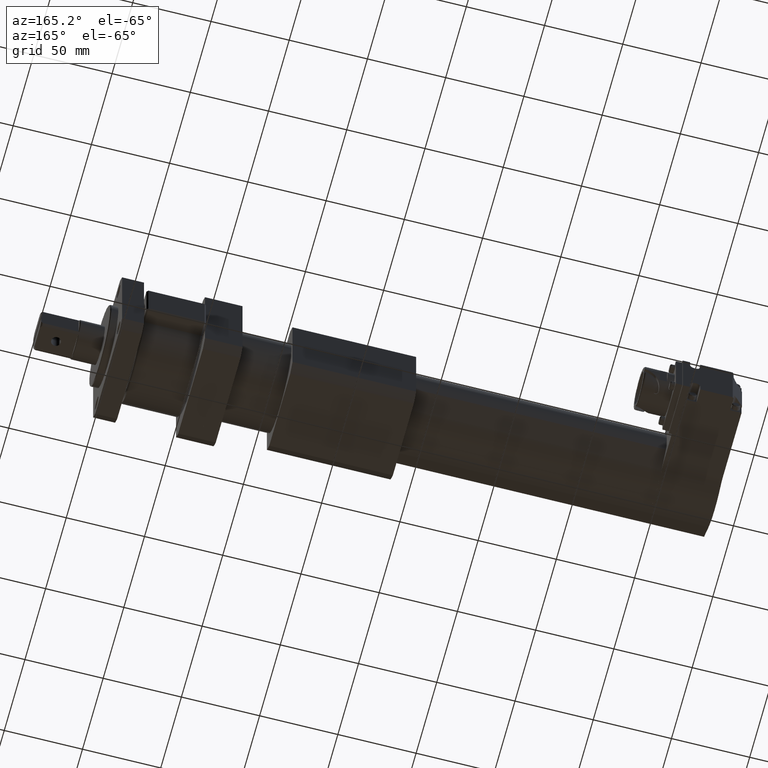
[diagram: clean part render]
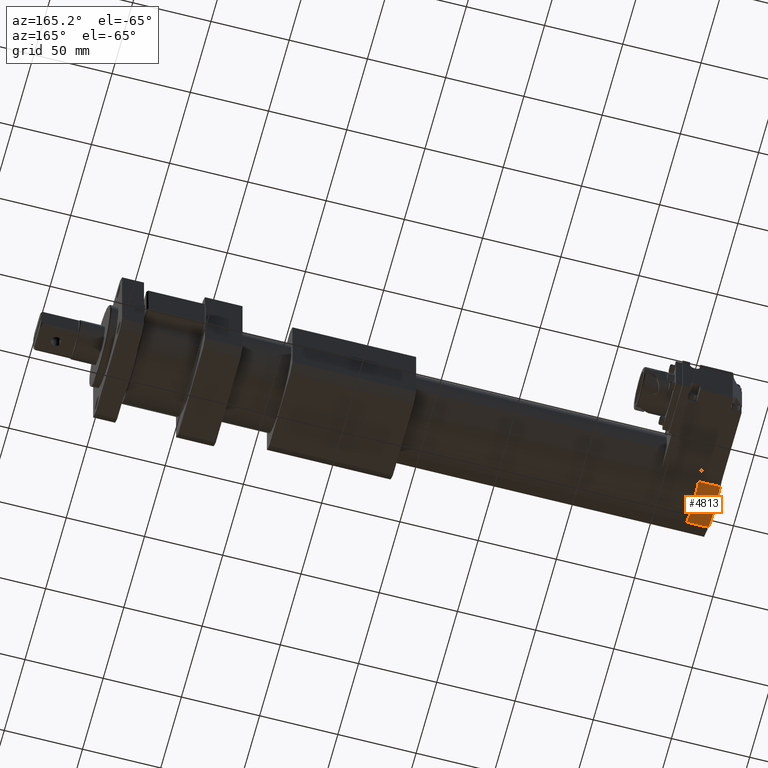
[diagram: same view with one face highlighted and labeled with its STEP entity id]
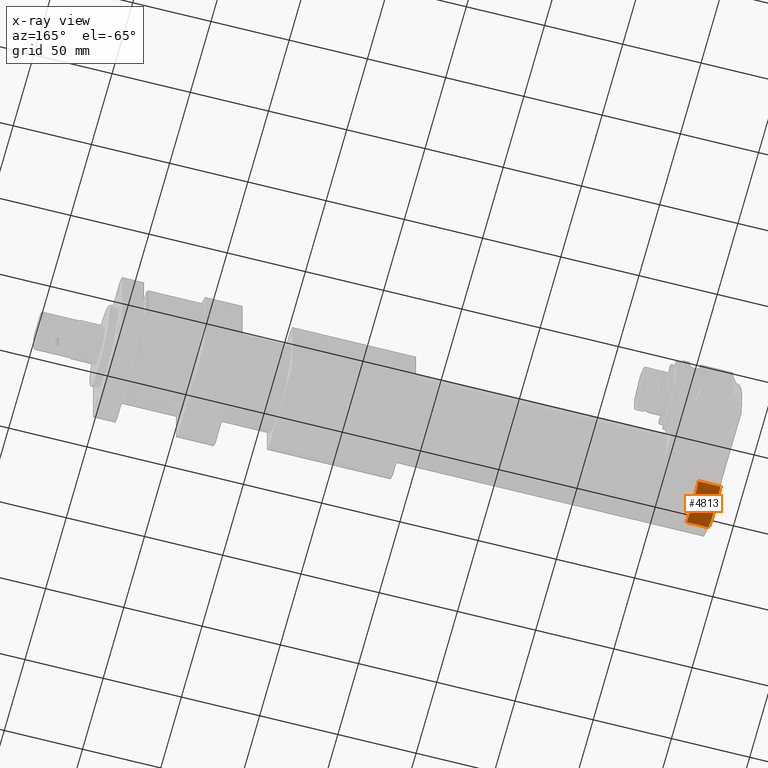
[diagram: x-ray of the same camera — body ghosted, the highlighted face saturated]
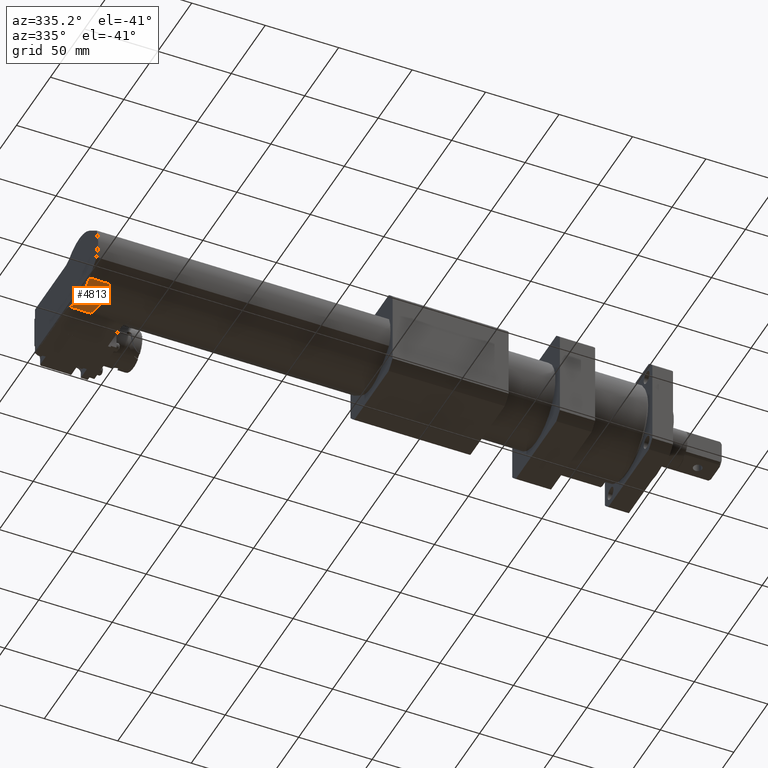
[diagram: same view with one face highlighted and labeled with its STEP entity id]
A machine part, auxiliary view. The second image highlights one B-rep face of the part: STEP entity #4813.
The next image is the same camera in x-ray: the body ghosted, the highlighted face saturated — about 0% of this face is hidden behind the body in this view.
A second angle (auxiliary view) of the same face is appended — the face is thin or edge-on in the first view.
In plain terms, the highlighted cylindrical surface (partial cylindrical patch) has radius 24.5 mm, axis along (1, -0, -0).
Its self-contained STEP definition (entity closure, byte-faithful):
#135 = CARTESIAN_POINT ( 'NONE',  ( -388.0000000000000000, 13.95534960860682700, -20.13698630136986600 ) ) ;
#169 = ORIENTED_EDGE ( 'NONE', *, *, #2558, .F. ) ;
#248 = CARTESIAN_POINT ( 'NONE',  ( -388.0000000000000000, 13.95534960860682900, -20.13698630136986600 ) ) ;
#504 = AXIS2_PLACEMENT_3D ( 'NONE', #8681, #5190, #2676 ) ;
#1172 = EDGE_LOOP ( 'NONE', ( #5941, #2826, #8354, #169 ) ) ;
#1561 = CIRCLE ( 'NONE', #504, 24.50000000000000700 ) ;
#1642 = EDGE_CURVE ( 'NONE', #2752, #7546, #1561, .T. ) ;
#2283 = VECTOR ( 'NONE', #6403, 1000.000000000000000 ) ;
#2382 = CARTESIAN_POINT ( 'NONE',  ( -374.0000000000000000, -15.08370614547851900, -19.30626346336478200 ) ) ;
#2412 = CARTESIAN_POINT ( 'NONE',  ( -374.0000000000000000, 0.0000000000000000000, 0.0000000000000000000 ) ) ;
#2487 = CARTESIAN_POINT ( 'NONE',  ( -388.0000000000000000, -15.08370614547851900, -19.30626346336478200 ) ) ;
#2558 = EDGE_CURVE ( 'NONE', #7546, #7648, #5574, .T. ) ;
#2676 = DIRECTION ( 'NONE',  ( 0.0000000000000000000, 0.0000000000000000000, 1.000000000000000000 ) ) ;
#2752 = VERTEX_POINT ( 'NONE', #248 ) ;
#2813 = CYLINDRICAL_SURFACE ( 'NONE', #8089, 24.50000000000000700 ) ;
#2826 = ORIENTED_EDGE ( 'NONE', *, *, #3771, .T. ) ;
#3094 = DIRECTION ( 'NONE',  ( 0.0000000000000000000, 0.0000000000000000000, 1.000000000000000000 ) ) ;
#3404 = CARTESIAN_POINT ( 'NONE',  ( -388.0000000000000000, 0.0000000000000000000, 0.0000000000000000000 ) ) ;
#3742 = VERTEX_POINT ( 'NONE', #4290 ) ;
#3771 = EDGE_CURVE ( 'NONE', #2752, #3742, #4792, .T. ) ;
#3912 = AXIS2_PLACEMENT_3D ( 'NONE', #2412, #7299, #3094 ) ;
#4105 = DIRECTION ( 'NONE',  ( 0.0000000000000000000, 0.0000000000000000000, -1.000000000000000000 ) ) ;
#4290 = CARTESIAN_POINT ( 'NONE',  ( -374.0000000000000000, 13.95534960860682900, -20.13698630136986600 ) ) ;
#4792 = LINE ( 'NONE', #135, #2283 ) ;
#4813 = ADVANCED_FACE ( 'NONE', ( #8410 ), #2813, .T. ) ;
#5102 = CARTESIAN_POINT ( 'NONE',  ( -388.0000000000000000, -15.08370614547851900, -19.30626346336478200 ) ) ;
#5190 = DIRECTION ( 'NONE',  ( -1.000000000000000000, 0.0000000000000000000, 0.0000000000000000000 ) ) ;
#5574 = LINE ( 'NONE', #2487, #7657 ) ;
#5941 = ORIENTED_EDGE ( 'NONE', *, *, #1642, .F. ) ;
#6403 = DIRECTION ( 'NONE',  ( 1.000000000000000000, -0.0000000000000000000, -0.0000000000000000000 ) ) ;
#6425 = EDGE_CURVE ( 'NONE', #3742, #7648, #8845, .T. ) ;
#6675 = DIRECTION ( 'NONE',  ( 1.000000000000000000, -0.0000000000000000000, -0.0000000000000000000 ) ) ;
#6918 = DIRECTION ( 'NONE',  ( 1.000000000000000000, -0.0000000000000000000, -0.0000000000000000000 ) ) ;
#7299 = DIRECTION ( 'NONE',  ( -1.000000000000000000, 0.0000000000000000000, 0.0000000000000000000 ) ) ;
#7546 = VERTEX_POINT ( 'NONE', #5102 ) ;
#7648 = VERTEX_POINT ( 'NONE', #2382 ) ;
#7657 = VECTOR ( 'NONE', #6675, 1000.000000000000000 ) ;
#8089 = AXIS2_PLACEMENT_3D ( 'NONE', #3404, #6918, #4105 ) ;
#8354 = ORIENTED_EDGE ( 'NONE', *, *, #6425, .T. ) ;
#8410 = FACE_OUTER_BOUND ( 'NONE', #1172, .T. ) ;
#8681 = CARTESIAN_POINT ( 'NONE',  ( -388.0000000000000000, 0.0000000000000000000, 0.0000000000000000000 ) ) ;
#8845 = CIRCLE ( 'NONE', #3912, 24.50000000000000700 ) ;